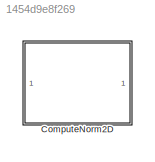
MODEL slx_1454d9e8f269
KIND library
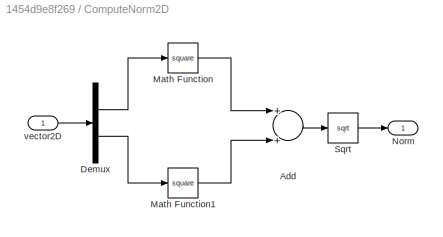
BLOCK [SubSystem] ComputeNorm2D
  Ports = [1, 1]
  RequestExecContextInheritance = off
BLOCK [Sum] ComputeNorm2D/Add
  InputSameDT = off
  OutDataTypeStr = Inherit: Inherit via internal rule
  Ports = [2, 1]
  SaturateOnIntegerOverflow = off
BLOCK [Demux] ComputeNorm2D/Demux
  DisplayOption = bar
  Outputs = 2
  Ports = [1, 2]
BLOCK [Math] ComputeNorm2D/Math Function
  Operator = square
  Ports = [1, 1]
BLOCK [Math] ComputeNorm2D/Math Function1
  Operator = square
  Ports = [1, 1]
BLOCK [Outport] ComputeNorm2D/Norm
  IconDisplay = Port number
BLOCK [Sqrt] ComputeNorm2D/Sqrt
BLOCK [Inport] ComputeNorm2D/vector2D
  IconDisplay = Port number
LINE ComputeNorm2D/Add:1 -> ComputeNorm2D/Sqrt:1
LINE ComputeNorm2D/Demux:1 -> ComputeNorm2D/Math Function:1
LINE ComputeNorm2D/Demux:2 -> ComputeNorm2D/Math Function1:1
LINE ComputeNorm2D/Math Function1:1 -> ComputeNorm2D/Add:2
LINE ComputeNorm2D/Math Function:1 -> ComputeNorm2D/Add:1
LINE ComputeNorm2D/Sqrt:1 -> ComputeNorm2D/Norm:1
LINE ComputeNorm2D/vector2D:1 -> ComputeNorm2D/Demux:1
